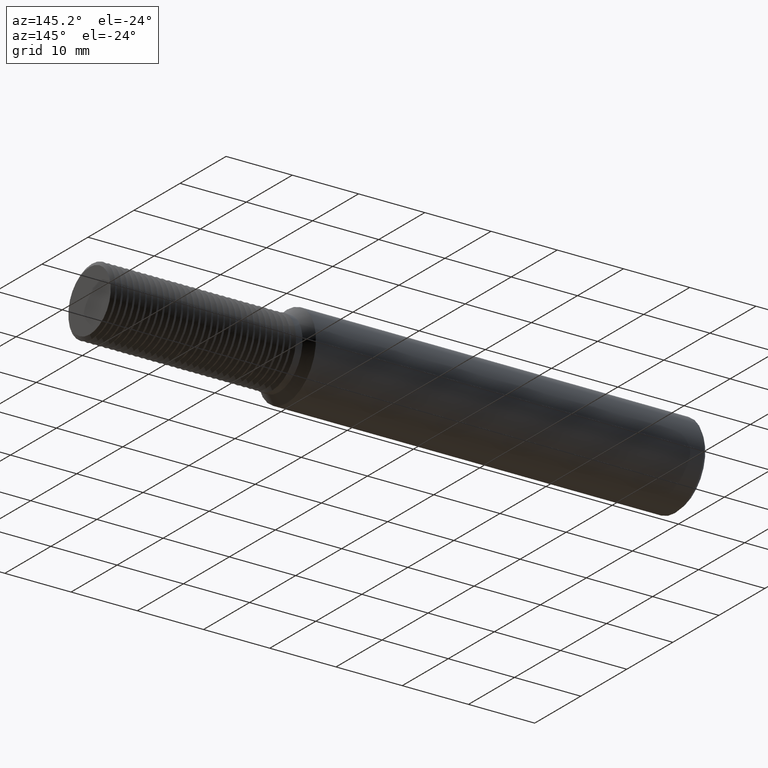
[diagram: clean part render]
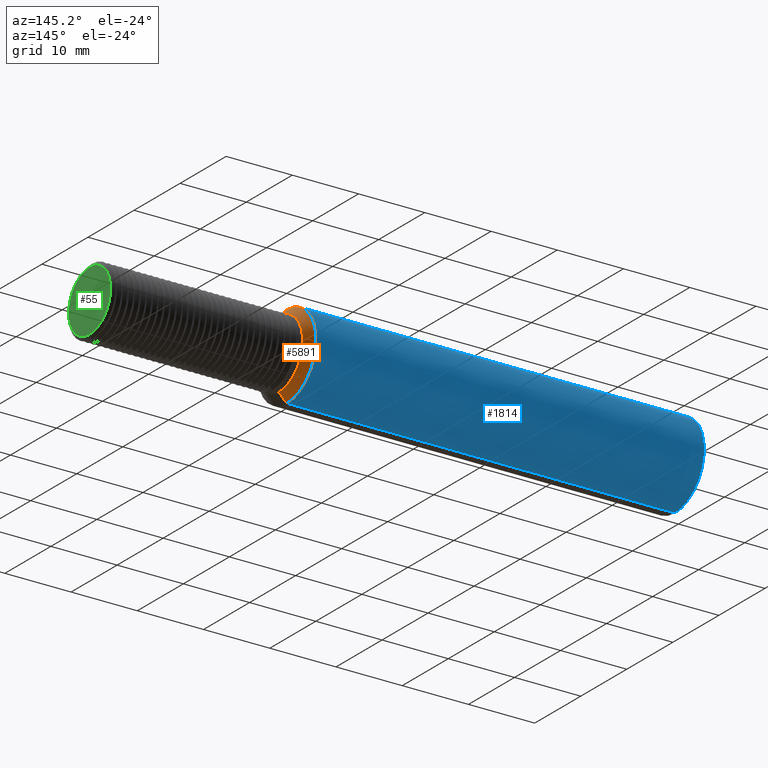
[diagram: same view with three faces highlighted in distinct colors, each labeled with its STEP entity id]
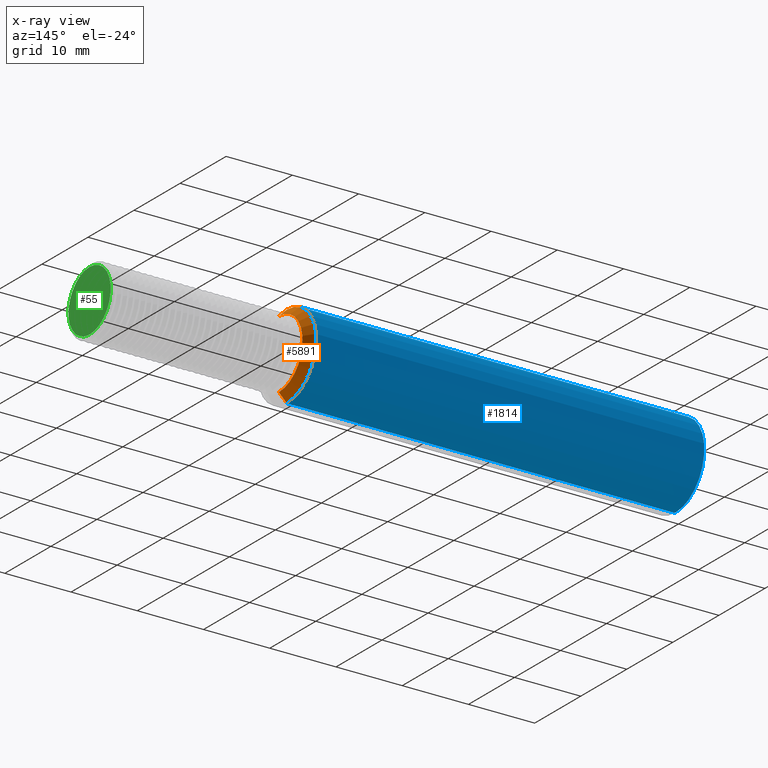
[diagram: x-ray of the same camera — body ghosted, the three highlighted faces saturated]
A machine part, auxiliary view with three faces highlighted in distinct colors.
The next image is the same camera in x-ray (body ghosted, the three faces saturated) — at least one of them is partly hidden behind the body in this view.
Their STEP definitions:

[orange] entity #5891 — the highlighted conical surface has half-angle 45 deg.
#2 = DIRECTION ( 'NONE',  ( -0.7071067811865462405, 0.000000000000000000, 0.7071067811865487940 ) ) ;
#81 = AXIS2_PLACEMENT_3D ( 'NONE', #2712, #5614, #5165 ) ;
#373 = ORIENTED_EDGE ( 'NONE', *, *, #442, .T. ) ;
#442 = EDGE_CURVE ( 'NONE', #2525, #1977, #6173, .T. ) ;
#491 = CIRCLE ( 'NONE', #2150, 0.2498499999999999888 ) ;
#666 = EDGE_CURVE ( 'NONE', #4791, #1977, #491, .T. ) ;
#838 = CARTESIAN_POINT ( 'NONE',  ( 2.374999999999999556, 0.000000000000000000, 0.000000000000000000 ) ) ;
#1039 = VERTEX_POINT ( 'NONE', #4799 ) ;
#1041 = CARTESIAN_POINT ( 'NONE',  ( 2.328149999999999942, 0.000000000000000000, 0.000000000000000000 ) ) ;
#1661 = CARTESIAN_POINT ( 'NONE',  ( 2.374999999999999556, 2.486033002269127361E-17, -0.2030000000000000138 ) ) ;
#1920 = EDGE_CURVE ( 'NONE', #1039, #4791, #1927, .T. ) ;
#1927 = LINE ( 'NONE', #4451, #6066 ) ;
#1977 = VERTEX_POINT ( 'NONE', #3556 ) ;
#2150 = AXIS2_PLACEMENT_3D ( 'NONE', #1041, #5382, #5913 ) ;
#2303 = AXIS2_PLACEMENT_3D ( 'NONE', #838, #4244, #4308 ) ;
#2525 = VERTEX_POINT ( 'NONE', #5282 ) ;
#2571 = ORIENTED_EDGE ( 'NONE', *, *, #4838, .T. ) ;
#2712 = CARTESIAN_POINT ( 'NONE',  ( 2.374999999999999556, 0.000000000000000000, 0.000000000000000000 ) ) ;
#2792 = FACE_OUTER_BOUND ( 'NONE', #6087, .T. ) ;
#2997 = CIRCLE ( 'NONE', #81, 0.2030000000000000138 ) ;
#3125 = DIRECTION ( 'NONE',  ( -0.7071067811865462405, 8.659560562354948882E-17, -0.7071067811865487940 ) ) ;
#3421 = ORIENTED_EDGE ( 'NONE', *, *, #666, .F. ) ;
#3447 = CONICAL_SURFACE ( 'NONE', #2303, 0.2030000000000000138, 0.7853981633974501664 ) ;
#3556 = CARTESIAN_POINT ( 'NONE',  ( 2.328149999999999942, 3.059780027669661931E-17, -0.2498499999999999888 ) ) ;
#3563 = CARTESIAN_POINT ( 'NONE',  ( 2.328149999999999942, 0.000000000000000000, 0.2498499999999999888 ) ) ;
#4244 = DIRECTION ( 'NONE',  ( -1.000000000000000000, -0.000000000000000000, -0.000000000000000000 ) ) ;
#4283 = ORIENTED_EDGE ( 'NONE', *, *, #1920, .F. ) ;
#4308 = DIRECTION ( 'NONE',  ( 0.000000000000000000, 0.000000000000000000, 1.000000000000000000 ) ) ;
#4451 = CARTESIAN_POINT ( 'NONE',  ( 2.374999999999999556, 0.000000000000000000, 0.2030000000000000138 ) ) ;
#4791 = VERTEX_POINT ( 'NONE', #3563 ) ;
#4799 = CARTESIAN_POINT ( 'NONE',  ( 2.374999999999999556, 0.000000000000000000, 0.2030000000000000138 ) ) ;
#4838 = EDGE_CURVE ( 'NONE', #1039, #2525, #2997, .T. ) ;
#5165 = DIRECTION ( 'NONE',  ( 0.000000000000000000, 0.000000000000000000, 1.000000000000000000 ) ) ;
#5282 = CARTESIAN_POINT ( 'NONE',  ( 2.374999999999999556, 2.772906514969394800E-17, -0.2030000000000000138 ) ) ;
#5382 = DIRECTION ( 'NONE',  ( -1.000000000000000000, -0.000000000000000000, -0.000000000000000000 ) ) ;
#5614 = DIRECTION ( 'NONE',  ( -1.000000000000000000, -0.000000000000000000, -0.000000000000000000 ) ) ;
#5747 = VECTOR ( 'NONE', #3125, 39.37007874015748143 ) ;
#5891 = ADVANCED_FACE ( 'NONE', ( #2792 ), #3447, .T. ) ;
#5913 = DIRECTION ( 'NONE',  ( 0.000000000000000000, 0.000000000000000000, 1.000000000000000000 ) ) ;
#6066 = VECTOR ( 'NONE', #2, 39.37007874015748143 ) ;
#6087 = EDGE_LOOP ( 'NONE', ( #2571, #373, #3421, #4283 ) ) ;
#6173 = LINE ( 'NONE', #1661, #5747 ) ;

[blue] entity #1814 — the highlighted cylindrical surface (partial cylindrical patch) has radius 6.3462 mm, axis along (-1, -0, -0).
#100 = DIRECTION ( 'NONE',  ( 0.000000000000000000, 0.000000000000000000, -1.000000000000000000 ) ) ;
#491 = CIRCLE ( 'NONE', #2150, 0.2498499999999999888 ) ;
#500 = CIRCLE ( 'NONE', #3610, 0.2498499999999999888 ) ;
#666 = EDGE_CURVE ( 'NONE', #4791, #1977, #491, .T. ) ;
#711 = DIRECTION ( 'NONE',  ( 1.000000000000000000, 0.000000000000000000, 0.000000000000000000 ) ) ;
#924 = LINE ( 'NONE', #4362, #6414 ) ;
#926 = AXIS2_PLACEMENT_3D ( 'NONE', #4742, #4810, #6301 ) ;
#928 = ORIENTED_EDGE ( 'NONE', *, *, #666, .T. ) ;
#1007 = EDGE_LOOP ( 'NONE', ( #928, #2678, #5554, #1420 ) ) ;
#1041 = CARTESIAN_POINT ( 'NONE',  ( 2.328149999999999942, 0.000000000000000000, 0.000000000000000000 ) ) ;
#1420 = ORIENTED_EDGE ( 'NONE', *, *, #3243, .F. ) ;
#1625 = CARTESIAN_POINT ( 'NONE',  ( 0.02000000000000009409, 0.000000000000000000, 0.000000000000000000 ) ) ;
#1814 = ADVANCED_FACE ( 'NONE', ( #3838 ), #5850, .T. ) ;
#1959 = DIRECTION ( 'NONE',  ( -1.000000000000000000, -0.000000000000000000, -0.000000000000000000 ) ) ;
#1977 = VERTEX_POINT ( 'NONE', #3556 ) ;
#2000 = EDGE_CURVE ( 'NONE', #1977, #4317, #3903, .T. ) ;
#2150 = AXIS2_PLACEMENT_3D ( 'NONE', #1041, #5382, #5913 ) ;
#2453 = CARTESIAN_POINT ( 'NONE',  ( 0.02000000000000009409, 3.059780027669661931E-17, 0.2498499999999999888 ) ) ;
#2678 = ORIENTED_EDGE ( 'NONE', *, *, #2000, .T. ) ;
#3243 = EDGE_CURVE ( 'NONE', #4791, #3959, #924, .T. ) ;
#3556 = CARTESIAN_POINT ( 'NONE',  ( 2.328149999999999942, 3.059780027669661931E-17, -0.2498499999999999888 ) ) ;
#3563 = CARTESIAN_POINT ( 'NONE',  ( 2.328149999999999942, 0.000000000000000000, 0.2498499999999999888 ) ) ;
#3610 = AXIS2_PLACEMENT_3D ( 'NONE', #1625, #711, #100 ) ;
#3838 = FACE_OUTER_BOUND ( 'NONE', #1007, .T. ) ;
#3891 = VECTOR ( 'NONE', #1959, 39.37007874015748143 ) ;
#3903 = LINE ( 'NONE', #5514, #3891 ) ;
#3959 = VERTEX_POINT ( 'NONE', #2453 ) ;
#4047 = CARTESIAN_POINT ( 'NONE',  ( 0.02000000000000009409, 0.000000000000000000, -0.2498499999999999888 ) ) ;
#4317 = VERTEX_POINT ( 'NONE', #4047 ) ;
#4362 = CARTESIAN_POINT ( 'NONE',  ( 0.000000000000000000, 0.000000000000000000, 0.2498499999999999888 ) ) ;
#4742 = CARTESIAN_POINT ( 'NONE',  ( 0.000000000000000000, 0.000000000000000000, 0.000000000000000000 ) ) ;
#4786 = DIRECTION ( 'NONE',  ( -1.000000000000000000, -0.000000000000000000, -0.000000000000000000 ) ) ;
#4791 = VERTEX_POINT ( 'NONE', #3563 ) ;
#4810 = DIRECTION ( 'NONE',  ( -1.000000000000000000, -0.000000000000000000, -0.000000000000000000 ) ) ;
#5304 = EDGE_CURVE ( 'NONE', #4317, #3959, #500, .T. ) ;
#5382 = DIRECTION ( 'NONE',  ( -1.000000000000000000, -0.000000000000000000, -0.000000000000000000 ) ) ;
#5514 = CARTESIAN_POINT ( 'NONE',  ( 0.000000000000000000, 3.059780027669661931E-17, -0.2498499999999999888 ) ) ;
#5554 = ORIENTED_EDGE ( 'NONE', *, *, #5304, .T. ) ;
#5850 = CYLINDRICAL_SURFACE ( 'NONE', #926, 0.2498499999999999888 ) ;
#5913 = DIRECTION ( 'NONE',  ( 0.000000000000000000, 0.000000000000000000, 1.000000000000000000 ) ) ;
#6301 = DIRECTION ( 'NONE',  ( 0.000000000000000000, 0.000000000000000000, 1.000000000000000000 ) ) ;
#6414 = VECTOR ( 'NONE', #4786, 39.37007874015748143 ) ;

[green] entity #55 — the highlighted planar face has unit normal (-1, 0, -0).
#26 = AXIS2_PLACEMENT_3D ( 'NONE', #463, #978, #6392 ) ;
#55 = ADVANCED_FACE ( 'NONE', ( #3655 ), #758, .F. ) ;
#463 = CARTESIAN_POINT ( 'NONE',  ( 3.500000000000000000, 0.000000000000000000, 0.000000000000000000 ) ) ;
#568 = CARTESIAN_POINT ( 'NONE',  ( 3.500000000000000000, 0.000000000000000000, 0.1802998749751675567 ) ) ;
#662 = DIRECTION ( 'NONE',  ( -1.000000000000000000, 0.000000000000000000, -0.000000000000000000 ) ) ;
#748 = EDGE_CURVE ( 'NONE', #4878, #4725, #2836, .T. ) ;
#758 = PLANE ( 'NONE',  #6053 ) ;
#809 = EDGE_CURVE ( 'NONE', #4725, #4878, #3874, .T. ) ;
#978 = DIRECTION ( 'NONE',  ( -1.000000000000000000, -0.000000000000000000, -0.000000000000000000 ) ) ;
#1185 = DIRECTION ( 'NONE',  ( -0.000000000000000000, 0.000000000000000000, 1.000000000000000000 ) ) ;
#1565 = CARTESIAN_POINT ( 'NONE',  ( 3.500000000000000000, 0.000000000000000000, 0.000000000000000000 ) ) ;
#1699 = CARTESIAN_POINT ( 'NONE',  ( 3.500000000000000000, 2.208036647750069493E-17, -0.1802998749751675567 ) ) ;
#2010 = ORIENTED_EDGE ( 'NONE', *, *, #748, .F. ) ;
#2769 = EDGE_LOOP ( 'NONE', ( #3852, #2010 ) ) ;
#2836 = CIRCLE ( 'NONE', #26, 0.1802998749751675567 ) ;
#3655 = FACE_OUTER_BOUND ( 'NONE', #2769, .T. ) ;
#3852 = ORIENTED_EDGE ( 'NONE', *, *, #809, .F. ) ;
#3874 = CIRCLE ( 'NONE', #4697, 0.1802998749751675567 ) ;
#4028 = DIRECTION ( 'NONE',  ( 0.000000000000000000, 0.000000000000000000, 1.000000000000000000 ) ) ;
#4697 = AXIS2_PLACEMENT_3D ( 'NONE', #1565, #6098, #4028 ) ;
#4725 = VERTEX_POINT ( 'NONE', #568 ) ;
#4878 = VERTEX_POINT ( 'NONE', #1699 ) ;
#5105 = CARTESIAN_POINT ( 'NONE',  ( 3.500000000000000000, 0.2030000000000000138, 0.000000000000000000 ) ) ;
#6053 = AXIS2_PLACEMENT_3D ( 'NONE', #5105, #662, #1185 ) ;
#6098 = DIRECTION ( 'NONE',  ( -1.000000000000000000, -0.000000000000000000, -0.000000000000000000 ) ) ;
#6392 = DIRECTION ( 'NONE',  ( 0.000000000000000000, 0.000000000000000000, 1.000000000000000000 ) ) ;